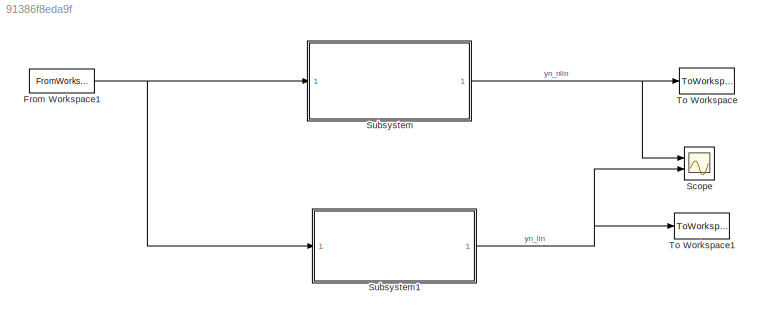
MODEL slx_91386f8eda9f
KIND model
CONFIG AbsTol = auto
CONFIG EnableMultiTasking = off
CONFIG FixedStep = auto
CONFIG MaxStep = auto
CONFIG MinStep = auto
CONFIG RelTol = 1e-3
CONFIG SampleTimeConstraint = Unconstrained
CONFIG Solver = VariableStepAuto
CONFIG SolverName = VariableStepAuto
CONFIG StartTime = 0.0
CONFIG StopTime = 10
BLOCK [FromWorkspace] From Workspace1
  SampleTime = 0
  VariableName = simin
  ZeroCross = on
BLOCK [Scope] Scope
  Floating = off
  NumInputPorts = 2
  Ports = [2]
  ScopeSpecificationString = Simulink.scopes.TimeScopeBlockCfg('CurrentConfiguration', extmgr.ConfigurationSet(extmgr.Configuration('Core','General UI',true),extmgr.Configuration('Core','Source UI',true),extmgr.Configuration('Sources','WiredSimulink',true),extmgr.Configuration('Visuals','Time Domain',true,'SerializedDisplays',{struct('MinYLimReal','14.96653','MaxYLimReal','15.30121','YLabelReal','','MinYLimMag','14.96653','Ma...<+1340ch>
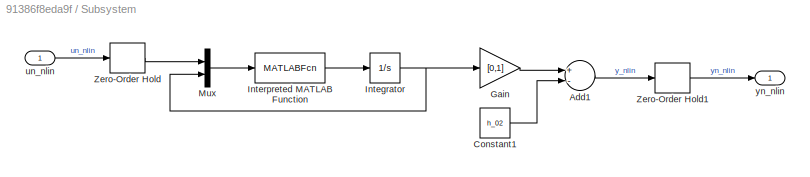
BLOCK [SubSystem] Subsystem
  Ports = [1, 1]
  RequestExecContextInheritance = off
BLOCK [Sum] Subsystem/Add1
  InputSameDT = off
  Inputs = +-
  OutDataTypeStr = Inherit: Inherit via internal rule
  Ports = [2, 1]
  SaturateOnIntegerOverflow = off
BLOCK [Constant] Subsystem/Constant1
  Value = h_02
BLOCK [Gain] Subsystem/Gain
  Gain = [0,1]
  Multiplication = Matrix(K*u)
  OutDataTypeStr = Inherit: Inherit via internal rule
  ParamDataTypeStr = Inherit: Inherit via internal rule
  SaturateOnIntegerOverflow = off
BLOCK [Integrator] Subsystem/Integrator
  InitialCondition = [xe1; xe2;]
  Ports = [1, 1]
BLOCK [MATLABFcn] Subsystem/Interpreted MATLAB Function
  MATLABFcn = nonlinear_2_tank_model_function_discrete
  Ports = [1, 1]
BLOCK [Mux] Subsystem/Mux
  DisplayOption = bar
  Inputs = 2
  Ports = [2, 1]
BLOCK [ZeroOrderHold] Subsystem/Zero-Order Hold
  SampleTime = 0.5
BLOCK [ZeroOrderHold] Subsystem/Zero-Order Hold1
  SampleTime = 0.5
BLOCK [Inport] Subsystem/un_nlin
  IconDisplay = Port number
BLOCK [Outport] Subsystem/yn_nlin
  IconDisplay = Port number
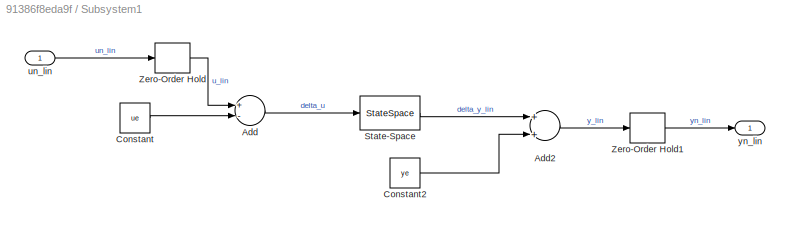
BLOCK [SubSystem] Subsystem1
  Ports = [1, 1]
  RequestExecContextInheritance = off
BLOCK [Sum] Subsystem1/Add
  InputSameDT = off
  Inputs = +-
  OutDataTypeStr = Inherit: Inherit via internal rule
  Ports = [2, 1]
  SaturateOnIntegerOverflow = off
BLOCK [Sum] Subsystem1/Add2
  InputSameDT = off
  OutDataTypeStr = Inherit: Inherit via internal rule
  Ports = [2, 1]
  SaturateOnIntegerOverflow = off
BLOCK [Constant] Subsystem1/Constant
  Value = ue
BLOCK [Constant] Subsystem1/Constant2
  Value = ye
BLOCK [StateSpace] Subsystem1/State-Space
  A = A
  B = B
  C = C
  D = D
  InitialCondition = [0; 0]
  Ports = [1, 1]
BLOCK [ZeroOrderHold] Subsystem1/Zero-Order Hold
  SampleTime = 0.5
BLOCK [ZeroOrderHold] Subsystem1/Zero-Order Hold1
  SampleTime = 0.5
BLOCK [Inport] Subsystem1/un_lin
  IconDisplay = Port number
BLOCK [Outport] Subsystem1/yn_lin
  IconDisplay = Port number
BLOCK [ToWorkspace] To Workspace
  FixptAsFi = on
  MaxDataPoints = inf
  Ports = [1]
  SampleTime = -1
  SaveFormat = Structure With Time
  VariableName = y_sim_nlin
BLOCK [ToWorkspace] To Workspace1
  FixptAsFi = on
  MaxDataPoints = inf
  Ports = [1]
  SampleTime = -1
  SaveFormat = Structure With Time
  VariableName = y_sim_lin
NET From Workspace1:1 -> Subsystem1:1, Subsystem:1
LINE Subsystem/Add1:1 -> Subsystem/Zero-Order Hold1:1
LINE Subsystem/Constant1:1 -> Subsystem/Add1:2
LINE Subsystem/Gain:1 -> Subsystem/Add1:1
NET Subsystem/Integrator:1 -> Subsystem/Gain:1, Subsystem/Mux:2
LINE Subsystem/Interpreted MATLAB Function:1 -> Subsystem/Integrator:1
LINE Subsystem/Mux:1 -> Subsystem/Interpreted MATLAB Function:1
LINE Subsystem/Zero-Order Hold1:1 -> Subsystem/yn_nlin:1
LINE Subsystem/Zero-Order Hold:1 -> Subsystem/Mux:1
LINE Subsystem/un_nlin:1 -> Subsystem/Zero-Order Hold:1
LINE Subsystem1/Add2:1 -> Subsystem1/Zero-Order Hold1:1
LINE Subsystem1/Add:1 -> Subsystem1/State-Space:1
LINE Subsystem1/Constant2:1 -> Subsystem1/Add2:2
LINE Subsystem1/Constant:1 -> Subsystem1/Add:2
LINE Subsystem1/State-Space:1 -> Subsystem1/Add2:1
LINE Subsystem1/Zero-Order Hold1:1 -> Subsystem1/yn_lin:1
LINE Subsystem1/Zero-Order Hold:1 -> Subsystem1/Add:1
LINE Subsystem1/un_lin:1 -> Subsystem1/Zero-Order Hold:1
NET Subsystem1:1 -> Scope:2, To Workspace1:1
NET Subsystem:1 -> Scope:1, To Workspace:1
note: NET lines group one-source signal fan-out (src -> all destinations, sorted); 1:1 wires keep LINE
